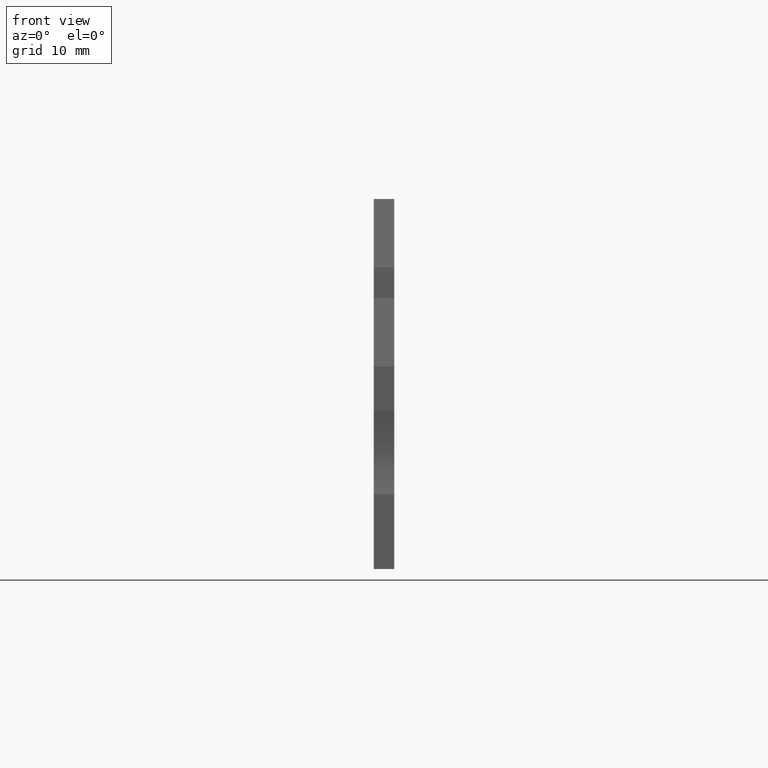
[diagram: clean part render]
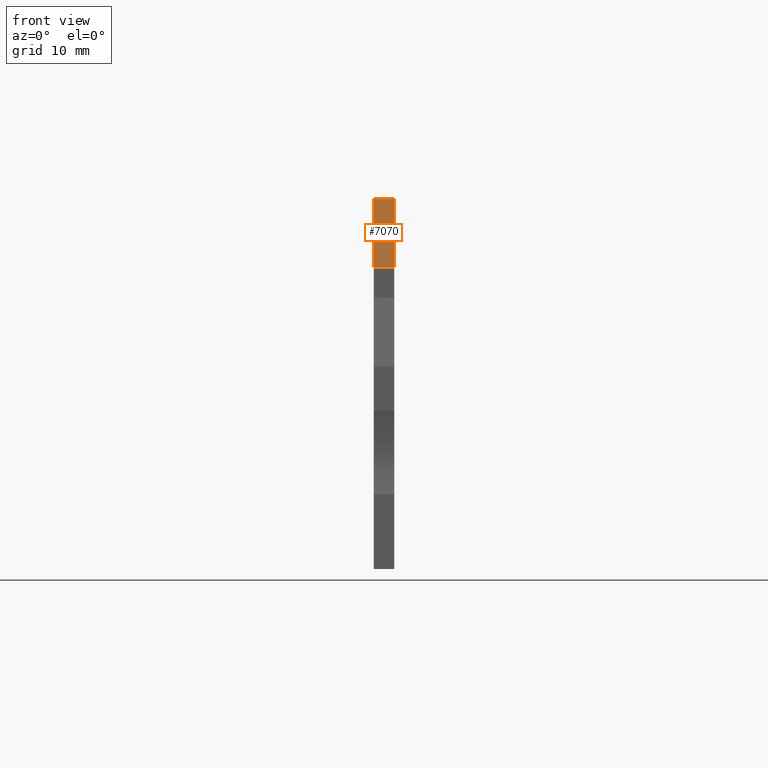
[diagram: same view with one face highlighted and labeled with its STEP entity id]
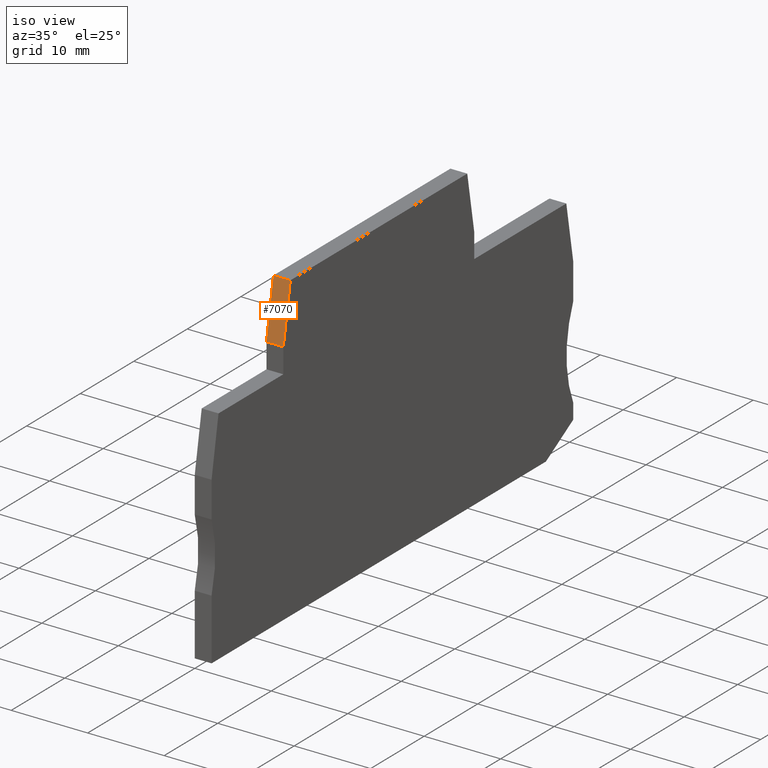
[diagram: same view with one face highlighted and labeled with its STEP entity id]
A machine part, front view. The second image highlights one B-rep face of the part: STEP entity #7070.
A second angle (iso view) of the same face is appended — the face is thin or edge-on in the first view.
In plain terms, the highlighted planar face has unit normal (0, -0.9848, 0.1736).
Its self-contained STEP definition (entity closure, byte-faithful):
#3610=CARTESIAN_POINT('',(61.2573958538972,-5.8999999999975,55.87));
#3620=VERTEX_POINT('',#3610);
#3650=CARTESIAN_POINT('',(60.1918554360151,-11.94298,55.87));
#3660=DIRECTION('',(-0.17364817766693,-0.984807753012208,0.));
#3670=VECTOR('',#3660,1.);
#3680=LINE('',#3650,#3670);
#3690=CARTESIAN_POINT('',(62.5533991621023,1.44999999999058,55.87));
#3700=VERTEX_POINT('',#3690);
#3710=EDGE_CURVE('',#3700,#3620,#3680,.T.);
#6020=CARTESIAN_POINT('',(62.5533991621023,1.44999999999058,53.67));
#6030=DIRECTION('',(0.,0.,1.));
#6040=VECTOR('',#6030,1.);
#6050=LINE('',#6020,#6040);
#6060=CARTESIAN_POINT('',(62.5533991621023,1.44999999999059,53.67));
#6070=VERTEX_POINT('',#6060);
#6080=EDGE_CURVE('',#6070,#3700,#6050,.T.);
#6420=CARTESIAN_POINT('',(60.1918554360151,-11.94298,53.67));
#6430=DIRECTION('',(0.17364817766693,0.984807753012208,0.));
#6440=VECTOR('',#6430,1.);
#6450=LINE('',#6420,#6440);
#6460=CARTESIAN_POINT('',(61.2573958538972,-5.8999999999975,53.67));
#6470=VERTEX_POINT('',#6460);
#6480=EDGE_CURVE('',#6470,#6070,#6450,.T.);
#6770=CARTESIAN_POINT('',(61.2573958538972,-5.8999999999975,53.67));
#6780=DIRECTION('',(0.,0.,1.));
#6790=VECTOR('',#6780,1.);
#6800=LINE('',#6770,#6790);
#6810=EDGE_CURVE('',#6470,#3620,#6800,.T.);
#6960=CARTESIAN_POINT('',(61.2573958538972,-5.89999999999749,53.67));
#6970=DIRECTION('',(-0.984807753012208,0.17364817766693,0.));
#6980=DIRECTION('',(0.17364817766693,0.984807753012208,0.));
#6990=AXIS2_PLACEMENT_3D('',#6960,#6970,#6980);
#7000=PLANE('',#6990);
#7010=ORIENTED_EDGE('',*,*,#6480,.F.);
#7020=ORIENTED_EDGE('',*,*,#6080,.F.);
#7030=ORIENTED_EDGE('',*,*,#3710,.F.);
#7040=ORIENTED_EDGE('',*,*,#6810,.T.);
#7050=EDGE_LOOP('',(#7040,#7030,#7020,#7010));
#7060=FACE_OUTER_BOUND('',#7050,.T.);
#7070=ADVANCED_FACE('',(#7060),#7000,.T.);